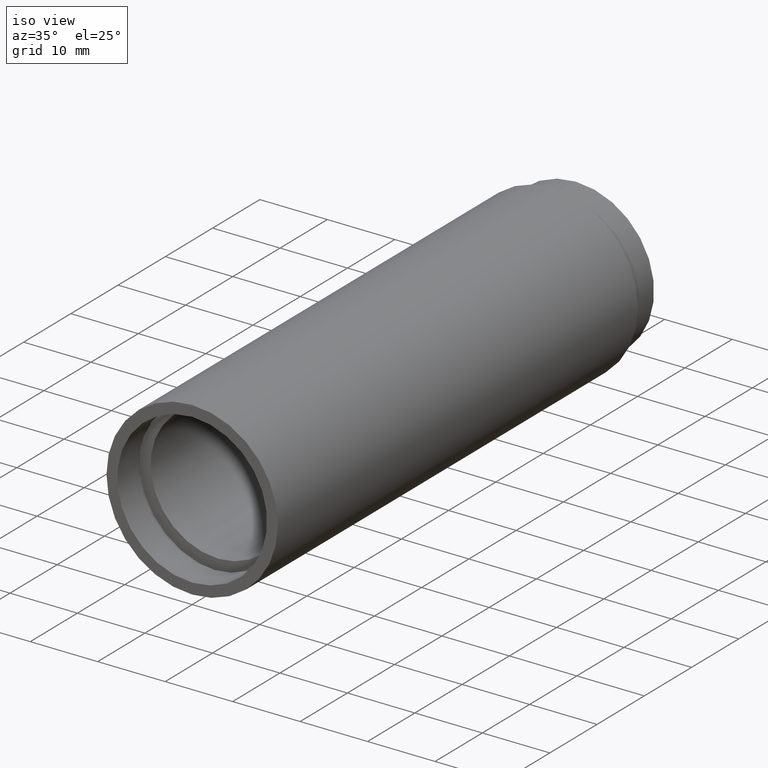
[diagram: clean part render]
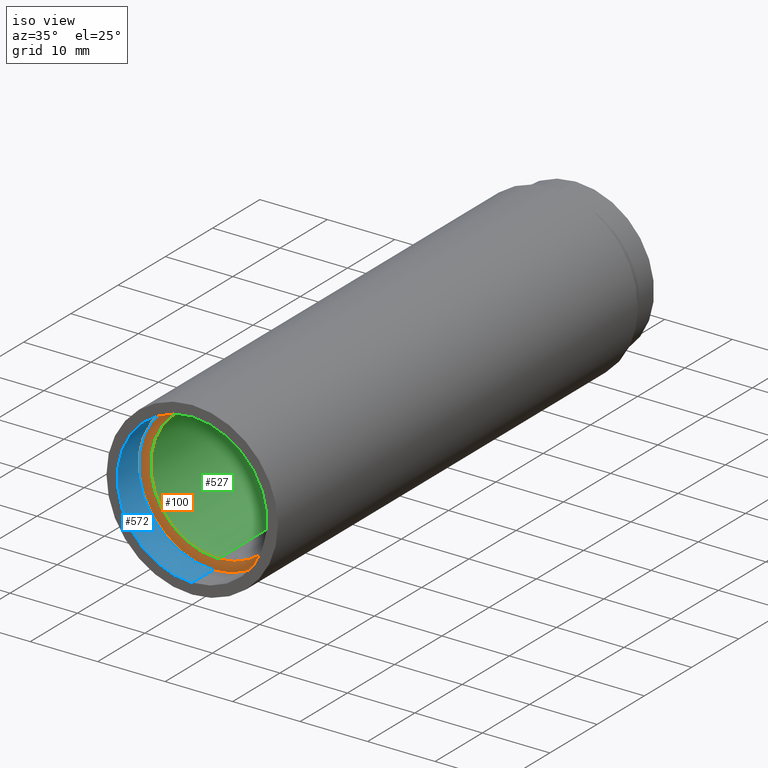
[diagram: same view with three faces highlighted in distinct colors, each labeled with its STEP entity id]
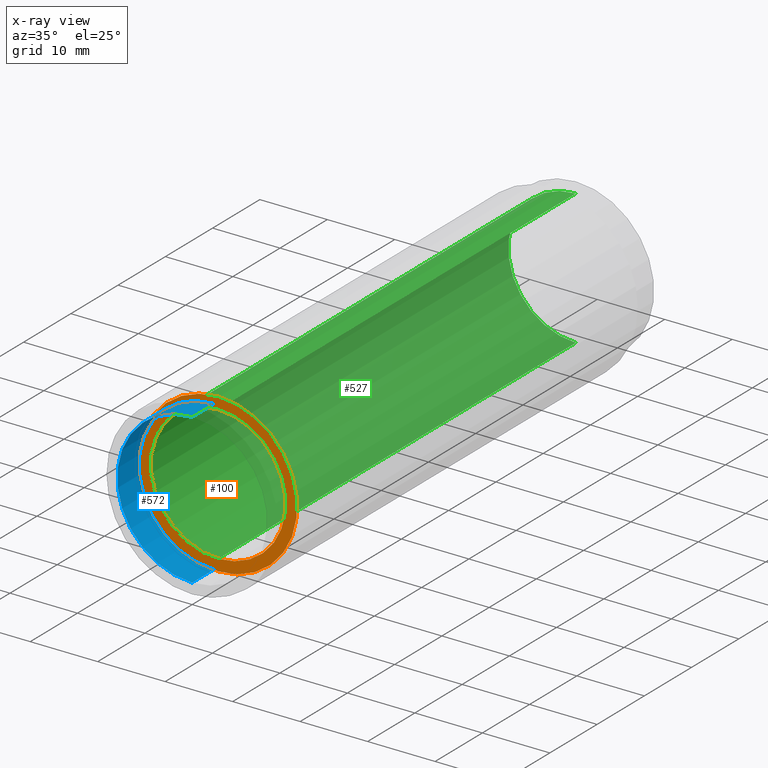
[diagram: x-ray of the same camera — body ghosted, the three highlighted faces saturated]
A machine part, iso view with three faces highlighted in distinct colors.
The next image is the same camera in x-ray (body ghosted, the three faces saturated) — at least one of them is partly hidden behind the body in this view.
Their STEP definitions:

[orange] entity #100 — the highlighted planar face has unit normal (-0, 1, 0).
#16 = CARTESIAN_POINT ( 'NONE',  ( 0.0000000000000000000, 5.499999999999976900, 0.0000000000000000000 ) ) ;
#23 = CARTESIAN_POINT ( 'NONE',  ( 0.0000000000000000000, 5.499999999999976900, 0.0000000000000000000 ) ) ;
#56 = CIRCLE ( 'NONE', #588, 10.00000000000002000 ) ;
#67 = CARTESIAN_POINT ( 'NONE',  ( 0.0000000000000000000, 5.499999999999976900, 0.0000000000000000000 ) ) ;
#73 = EDGE_CURVE ( 'NONE', #230, #543, #56, .T. ) ;
#95 = CARTESIAN_POINT ( 'NONE',  ( 0.0000000000000000000, 5.499999999999976900, 10.00000000000002000 ) ) ;
#99 = DIRECTION ( 'NONE',  ( -0.0000000000000000000, 1.000000000000000000, -0.0000000000000000000 ) ) ;
#100 = ADVANCED_FACE ( 'NONE', ( #187, #496 ), #587, .F. ) ;
#102 = AXIS2_PLACEMENT_3D ( 'NONE', #431, #534, #302 ) ;
#107 = CARTESIAN_POINT ( 'NONE',  ( 0.0000000000000000000, 5.499999999999976900, 11.70000000000001900 ) ) ;
#120 = AXIS2_PLACEMENT_3D ( 'NONE', #23, #350, #595 ) ;
#133 = VERTEX_POINT ( 'NONE', #107 ) ;
#150 = CARTESIAN_POINT ( 'NONE',  ( 1.432836755002405700E-015, 5.499999999999976900, -11.70000000000001900 ) ) ;
#156 = ORIENTED_EDGE ( 'NONE', *, *, #614, .T. ) ;
#157 = DIRECTION ( 'NONE',  ( 0.0000000000000000000, 0.0000000000000000000, 1.000000000000000000 ) ) ;
#187 = FACE_OUTER_BOUND ( 'NONE', #310, .T. ) ;
#196 = EDGE_CURVE ( 'NONE', #133, #594, #365, .T. ) ;
#204 = DIRECTION ( 'NONE',  ( 0.0000000000000000000, 0.0000000000000000000, 1.000000000000000000 ) ) ;
#214 = AXIS2_PLACEMENT_3D ( 'NONE', #16, #99, #157 ) ;
#229 = CARTESIAN_POINT ( 'NONE',  ( 0.0000000000000000000, 5.499999999999976900, 0.0000000000000000000 ) ) ;
#230 = VERTEX_POINT ( 'NONE', #307 ) ;
#232 = DIRECTION ( 'NONE',  ( -0.0000000000000000000, 1.000000000000000000, -0.0000000000000000000 ) ) ;
#243 = AXIS2_PLACEMENT_3D ( 'NONE', #229, #232, #275 ) ;
#275 = DIRECTION ( 'NONE',  ( 0.0000000000000000000, 0.0000000000000000000, 1.000000000000000000 ) ) ;
#302 = DIRECTION ( 'NONE',  ( 0.0000000000000000000, 0.0000000000000000000, 1.000000000000000000 ) ) ;
#307 = CARTESIAN_POINT ( 'NONE',  ( 1.224646799147355400E-015, 5.499999999999976900, -10.00000000000002000 ) ) ;
#310 = EDGE_LOOP ( 'NONE', ( #469, #444 ) ) ;
#350 = DIRECTION ( 'NONE',  ( -0.0000000000000000000, 1.000000000000000000, -0.0000000000000000000 ) ) ;
#365 = CIRCLE ( 'NONE', #120, 11.70000000000001900 ) ;
#375 = EDGE_LOOP ( 'NONE', ( #156, #406 ) ) ;
#387 = EDGE_CURVE ( 'NONE', #594, #133, #433, .T. ) ;
#406 = ORIENTED_EDGE ( 'NONE', *, *, #73, .T. ) ;
#431 = CARTESIAN_POINT ( 'NONE',  ( 11.70000000000001900, 5.499999999999982200, 0.0000000000000000000 ) ) ;
#433 = CIRCLE ( 'NONE', #243, 11.70000000000001900 ) ;
#444 = ORIENTED_EDGE ( 'NONE', *, *, #387, .F. ) ;
#469 = ORIENTED_EDGE ( 'NONE', *, *, #196, .F. ) ;
#481 = DIRECTION ( 'NONE',  ( -0.0000000000000000000, 1.000000000000000000, -0.0000000000000000000 ) ) ;
#496 = FACE_BOUND ( 'NONE', #375, .T. ) ;
#504 = CIRCLE ( 'NONE', #214, 10.00000000000002000 ) ;
#534 = DIRECTION ( 'NONE',  ( -0.0000000000000000000, 1.000000000000000000, 0.0000000000000000000 ) ) ;
#543 = VERTEX_POINT ( 'NONE', #95 ) ;
#587 = PLANE ( 'NONE',  #102 ) ;
#588 = AXIS2_PLACEMENT_3D ( 'NONE', #67, #481, #204 ) ;
#594 = VERTEX_POINT ( 'NONE', #150 ) ;
#595 = DIRECTION ( 'NONE',  ( 0.0000000000000000000, 0.0000000000000000000, 1.000000000000000000 ) ) ;
#614 = EDGE_CURVE ( 'NONE', #543, #230, #504, .T. ) ;

[blue] entity #572 — the highlighted cylindrical surface (partial cylindrical patch) has radius 11.1 mm, axis along (-0, 1, -0).
#17 = ORIENTED_EDGE ( 'NONE', *, *, #432, .F. ) ;
#20 = CIRCLE ( 'NONE', #210, 11.10000000000001700 ) ;
#74 = CARTESIAN_POINT ( 'NONE',  ( 0.0000000000000000000, 4.499999999999976000, 11.10000000000001700 ) ) ;
#82 = DIRECTION ( 'NONE',  ( -0.0000000000000000000, 1.000000000000000000, -0.0000000000000000000 ) ) ;
#110 = CARTESIAN_POINT ( 'NONE',  ( 0.0000000000000000000, 161.3761669434274500, 11.10000000000001700 ) ) ;
#117 = CARTESIAN_POINT ( 'NONE',  ( 0.0000000000000000000, -2.775557561562891400E-014, 11.10000000000001700 ) ) ;
#118 = LINE ( 'NONE', #582, #616 ) ;
#139 = VECTOR ( 'NONE', #311, 1000.000000000000000 ) ;
#147 = DIRECTION ( 'NONE',  ( -0.0000000000000000000, 1.000000000000000000, -0.0000000000000000000 ) ) ;
#176 = CARTESIAN_POINT ( 'NONE',  ( 1.359357947053564100E-015, -2.775557561562891400E-014, -11.10000000000001700 ) ) ;
#180 = DIRECTION ( 'NONE',  ( 0.0000000000000000000, 0.0000000000000000000, 1.000000000000000000 ) ) ;
#210 = AXIS2_PLACEMENT_3D ( 'NONE', #407, #82, #180 ) ;
#223 = AXIS2_PLACEMENT_3D ( 'NONE', #283, #479, #341 ) ;
#250 = EDGE_CURVE ( 'NONE', #319, #263, #397, .T. ) ;
#263 = VERTEX_POINT ( 'NONE', #74 ) ;
#283 = CARTESIAN_POINT ( 'NONE',  ( 0.0000000000000000000, 161.3761669434274500, 0.0000000000000000000 ) ) ;
#293 = AXIS2_PLACEMENT_3D ( 'NONE', #367, #526, #418 ) ;
#311 = DIRECTION ( 'NONE',  ( -0.0000000000000000000, 1.000000000000000000, -0.0000000000000000000 ) ) ;
#317 = CARTESIAN_POINT ( 'NONE',  ( 1.359357947053564100E-015, 4.499999999999976000, -11.10000000000001700 ) ) ;
#319 = VERTEX_POINT ( 'NONE', #117 ) ;
#341 = DIRECTION ( 'NONE',  ( 0.0000000000000000000, 0.0000000000000000000, 1.000000000000000000 ) ) ;
#353 = FACE_OUTER_BOUND ( 'NONE', #624, .T. ) ;
#360 = VERTEX_POINT ( 'NONE', #317 ) ;
#367 = CARTESIAN_POINT ( 'NONE',  ( 0.0000000000000000000, -2.775557561562891400E-014, 0.0000000000000000000 ) ) ;
#377 = EDGE_CURVE ( 'NONE', #360, #263, #20, .T. ) ;
#381 = VERTEX_POINT ( 'NONE', #176 ) ;
#394 = ORIENTED_EDGE ( 'NONE', *, *, #250, .F. ) ;
#397 = LINE ( 'NONE', #110, #139 ) ;
#407 = CARTESIAN_POINT ( 'NONE',  ( 0.0000000000000000000, 4.499999999999976000, 0.0000000000000000000 ) ) ;
#416 = ORIENTED_EDGE ( 'NONE', *, *, #571, .T. ) ;
#418 = DIRECTION ( 'NONE',  ( 0.0000000000000000000, 0.0000000000000000000, 1.000000000000000000 ) ) ;
#432 = EDGE_CURVE ( 'NONE', #381, #319, #560, .T. ) ;
#479 = DIRECTION ( 'NONE',  ( -0.0000000000000000000, 1.000000000000000000, -0.0000000000000000000 ) ) ;
#526 = DIRECTION ( 'NONE',  ( -0.0000000000000000000, 1.000000000000000000, -0.0000000000000000000 ) ) ;
#548 = CYLINDRICAL_SURFACE ( 'NONE', #223, 11.10000000000001700 ) ;
#560 = CIRCLE ( 'NONE', #293, 11.10000000000001700 ) ;
#571 = EDGE_CURVE ( 'NONE', #381, #360, #118, .T. ) ;
#572 = ADVANCED_FACE ( 'NONE', ( #353 ), #548, .F. ) ;
#574 = ORIENTED_EDGE ( 'NONE', *, *, #377, .T. ) ;
#582 = CARTESIAN_POINT ( 'NONE',  ( 1.359357947053564100E-015, 161.3761669434274500, -11.10000000000001700 ) ) ;
#616 = VECTOR ( 'NONE', #147, 1000.000000000000000 ) ;
#624 = EDGE_LOOP ( 'NONE', ( #17, #416, #574, #394 ) ) ;

[green] entity #527 — the highlighted cylindrical surface (partial cylindrical patch) has radius 10 mm, axis along (-0, 1, -0).
#2 = DIRECTION ( 'NONE',  ( -0.0000000000000000000, 1.000000000000000000, -0.0000000000000000000 ) ) ;
#56 = CIRCLE ( 'NONE', #588, 10.00000000000002000 ) ;
#67 = CARTESIAN_POINT ( 'NONE',  ( 0.0000000000000000000, 5.499999999999976900, 0.0000000000000000000 ) ) ;
#73 = EDGE_CURVE ( 'NONE', #230, #543, #56, .T. ) ;
#95 = CARTESIAN_POINT ( 'NONE',  ( 0.0000000000000000000, 5.499999999999976900, 10.00000000000002000 ) ) ;
#121 = CARTESIAN_POINT ( 'NONE',  ( 0.0000000000000000000, 161.3761669434274500, 10.00000000000002000 ) ) ;
#129 = AXIS2_PLACEMENT_3D ( 'NONE', #144, #2, #280 ) ;
#144 = CARTESIAN_POINT ( 'NONE',  ( 0.0000000000000000000, 161.3761669434274500, 0.0000000000000000000 ) ) ;
#146 = EDGE_CURVE ( 'NONE', #561, #340, #383, .T. ) ;
#155 = CARTESIAN_POINT ( 'NONE',  ( 0.0000000000000000000, 81.19999999999998900, 0.0000000000000000000 ) ) ;
#204 = DIRECTION ( 'NONE',  ( 0.0000000000000000000, 0.0000000000000000000, 1.000000000000000000 ) ) ;
#208 = DIRECTION ( 'NONE',  ( 0.0000000000000000000, 0.0000000000000000000, 1.000000000000000000 ) ) ;
#230 = VERTEX_POINT ( 'NONE', #307 ) ;
#236 = CYLINDRICAL_SURFACE ( 'NONE', #129, 10.00000000000002000 ) ;
#237 = CARTESIAN_POINT ( 'NONE',  ( 1.224646799147355400E-015, 81.19999999999998900, -10.00000000000002000 ) ) ;
#240 = EDGE_LOOP ( 'NONE', ( #337, #289, #570, #276 ) ) ;
#261 = EDGE_CURVE ( 'NONE', #230, #561, #316, .T. ) ;
#266 = FACE_OUTER_BOUND ( 'NONE', #240, .T. ) ;
#276 = ORIENTED_EDGE ( 'NONE', *, *, #368, .F. ) ;
#280 = DIRECTION ( 'NONE',  ( 0.0000000000000000000, 0.0000000000000000000, 1.000000000000000000 ) ) ;
#289 = ORIENTED_EDGE ( 'NONE', *, *, #261, .T. ) ;
#307 = CARTESIAN_POINT ( 'NONE',  ( 1.224646799147355400E-015, 5.499999999999976900, -10.00000000000002000 ) ) ;
#316 = LINE ( 'NONE', #549, #535 ) ;
#337 = ORIENTED_EDGE ( 'NONE', *, *, #73, .F. ) ;
#340 = VERTEX_POINT ( 'NONE', #362 ) ;
#357 = VECTOR ( 'NONE', #505, 1000.000000000000000 ) ;
#362 = CARTESIAN_POINT ( 'NONE',  ( 0.0000000000000000000, 81.19999999999998900, 10.00000000000002000 ) ) ;
#368 = EDGE_CURVE ( 'NONE', #543, #340, #566, .T. ) ;
#383 = CIRCLE ( 'NONE', #559, 10.00000000000002000 ) ;
#445 = DIRECTION ( 'NONE',  ( -0.0000000000000000000, 1.000000000000000000, -0.0000000000000000000 ) ) ;
#481 = DIRECTION ( 'NONE',  ( -0.0000000000000000000, 1.000000000000000000, -0.0000000000000000000 ) ) ;
#483 = DIRECTION ( 'NONE',  ( -0.0000000000000000000, 1.000000000000000000, -0.0000000000000000000 ) ) ;
#505 = DIRECTION ( 'NONE',  ( -0.0000000000000000000, 1.000000000000000000, -0.0000000000000000000 ) ) ;
#527 = ADVANCED_FACE ( 'NONE', ( #266 ), #236, .F. ) ;
#535 = VECTOR ( 'NONE', #445, 1000.000000000000000 ) ;
#543 = VERTEX_POINT ( 'NONE', #95 ) ;
#549 = CARTESIAN_POINT ( 'NONE',  ( 1.224646799147355400E-015, 161.3761669434274500, -10.00000000000002000 ) ) ;
#559 = AXIS2_PLACEMENT_3D ( 'NONE', #155, #483, #208 ) ;
#561 = VERTEX_POINT ( 'NONE', #237 ) ;
#566 = LINE ( 'NONE', #121, #357 ) ;
#570 = ORIENTED_EDGE ( 'NONE', *, *, #146, .T. ) ;
#588 = AXIS2_PLACEMENT_3D ( 'NONE', #67, #481, #204 ) ;